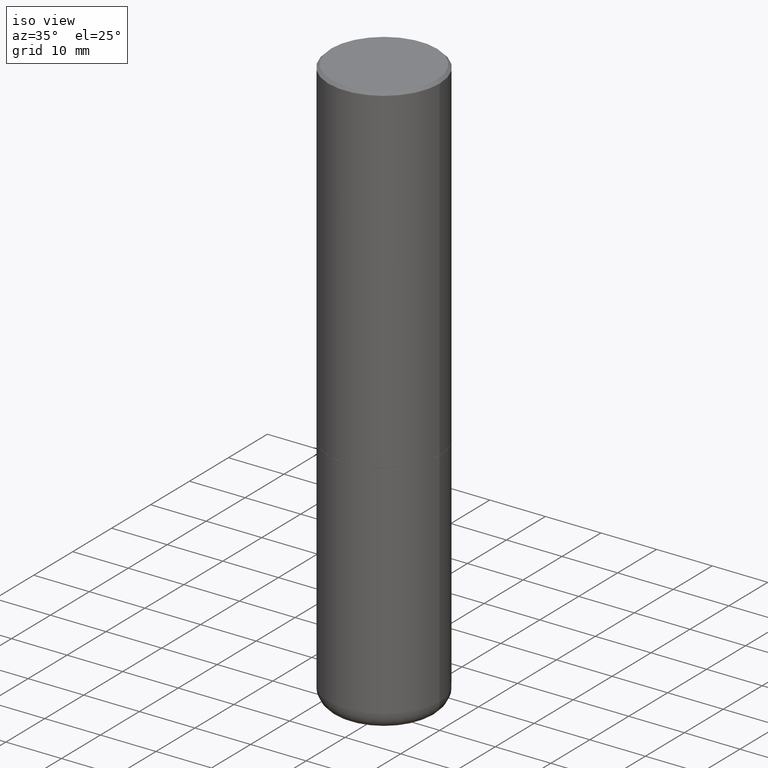
[diagram: clean part render]
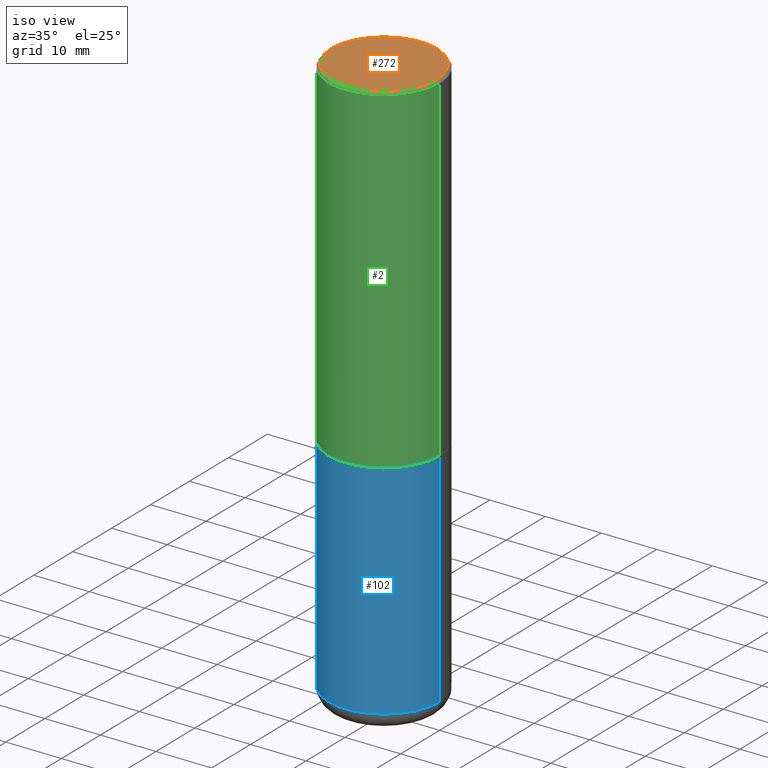
[diagram: same view with three faces highlighted in distinct colors, each labeled with its STEP entity id]
A machine part, iso view with three faces highlighted in distinct colors.
Their STEP definitions:

[orange] entity #272 — the highlighted planar face has unit normal (0, -0, -1).
#17 = PLANE ( 'NONE',  #289 ) ;
#31 = ORIENTED_EDGE ( 'NONE', *, *, #191, .T. ) ;
#43 = CARTESIAN_POINT ( 'NONE',  ( -0.3736999999999997546, 2.644447966039789058E-15, 2.646477743862071275E-16 ) ) ;
#53 = EDGE_LOOP ( 'NONE', ( #31, #218 ) ) ;
#76 = EDGE_CURVE ( 'NONE', #222, #152, #268, .T. ) ;
#95 = AXIS2_PLACEMENT_3D ( 'NONE', #298, #179, #370 ) ;
#99 = DIRECTION ( 'NONE',  ( -2.445468806185136597E-29, 3.491481338843145583E-15, 1.000000000000000000 ) ) ;
#103 = DIRECTION ( 'NONE',  ( 1.000000000000000000, -6.982962677686266711E-15, 4.877734241229879050E-29 ) ) ;
#144 = DIRECTION ( 'NONE',  ( -1.000000000000000000, 6.982962677686265922E-15, -4.876176775795935793E-29 ) ) ;
#148 = CARTESIAN_POINT ( 'NONE',  ( 2.609533152651355831E-15, 0.3736999999999997546, -1.172442689132570013E-15 ) ) ;
#152 = VERTEX_POINT ( 'NONE', #43 ) ;
#170 = AXIS2_PLACEMENT_3D ( 'NONE', #357, #99, #103 ) ;
#179 = DIRECTION ( 'NONE',  ( -2.445468806185136597E-29, 3.491481338843145583E-15, 1.000000000000000000 ) ) ;
#191 = EDGE_CURVE ( 'NONE', #152, #222, #229, .T. ) ;
#215 = CARTESIAN_POINT ( 'NONE',  ( 0.3736999999999997546, -2.667287895133366781E-15, 2.646477743862439574E-16 ) ) ;
#218 = ORIENTED_EDGE ( 'NONE', *, *, #76, .T. ) ;
#222 = VERTEX_POINT ( 'NONE', #215 ) ;
#229 = CIRCLE ( 'NONE', #95, 0.3736999999999997546 ) ;
#268 = CIRCLE ( 'NONE', #170, 0.3736999999999997546 ) ;
#272 = ADVANCED_FACE ( 'NONE', ( #303 ), #17, .F. ) ;
#289 = AXIS2_PLACEMENT_3D ( 'NONE', #148, #338, #144 ) ;
#298 = CARTESIAN_POINT ( 'NONE',  ( -6.471878768878362764E-45, 9.240127656358773134E-31, 2.646477743862255178E-16 ) ) ;
#303 = FACE_OUTER_BOUND ( 'NONE', #53, .T. ) ;
#338 = DIRECTION ( 'NONE',  ( 2.438088387897960049E-29, -3.491481338843145188E-15, -1.000000000000000000 ) ) ;
#357 = CARTESIAN_POINT ( 'NONE',  ( -6.471878768878362764E-45, 9.240127656358773134E-31, 2.646477743862255178E-16 ) ) ;
#370 = DIRECTION ( 'NONE',  ( 1.000000000000000000, -6.982962677686266711E-15, 4.877734241229879050E-29 ) ) ;

[blue] entity #102 — the highlighted cylindrical surface (partial cylindrical patch) has radius 10 mm, axis along (-0, 0, 1).
#3 = DIRECTION ( 'NONE',  ( 1.000000000000000000, -6.982962677686265922E-15, 4.876176775795935793E-29 ) ) ;
#4 = AXIS2_PLACEMENT_3D ( 'NONE', #300, #49, #373 ) ;
#20 = DIRECTION ( 'NONE',  ( 1.000000000000000000, -6.982962677686267499E-15, 0.000000000000000000 ) ) ;
#25 = AXIS2_PLACEMENT_3D ( 'NONE', #125, #410, #20 ) ;
#29 = ORIENTED_EDGE ( 'NONE', *, *, #131, .F. ) ;
#36 = EDGE_CURVE ( 'NONE', #274, #77, #256, .T. ) ;
#49 = DIRECTION ( 'NONE',  ( -2.445468806185136597E-29, 3.491481338843145583E-15, 1.000000000000000000 ) ) ;
#59 = ORIENTED_EDGE ( 'NONE', *, *, #302, .T. ) ;
#60 = CARTESIAN_POINT ( 'NONE',  ( -0.3937000000000000499, -8.336927238883277526E-15, -2.401600000000000179 ) ) ;
#68 = DIRECTION ( 'NONE',  ( -2.445468806185136877E-29, 3.491481338843145188E-15, 1.000000000000000000 ) ) ;
#70 = CARTESIAN_POINT ( 'NONE',  ( 0.3937000000000000499, -1.113433398957078206E-14, -2.401600000000000179 ) ) ;
#77 = VERTEX_POINT ( 'NONE', #60 ) ;
#97 = EDGE_CURVE ( 'NONE', #315, #127, #386, .T. ) ;
#102 = ADVANCED_FACE ( 'NONE', ( #205 ), #174, .T. ) ;
#125 = CARTESIAN_POINT ( 'NONE',  ( 9.724162160914577144E-29, -1.388352639577588421E-14, -3.976400000000000379 ) ) ;
#126 = CIRCLE ( 'NONE', #4, 0.3937000000000000499 ) ;
#127 = VERTEX_POINT ( 'NONE', #70 ) ;
#131 = EDGE_CURVE ( 'NONE', #77, #127, #126, .T. ) ;
#147 = CIRCLE ( 'NONE', #25, 0.3937000000000000499 ) ;
#165 = DIRECTION ( 'NONE',  ( -2.445468806185136877E-29, 3.491481338843145188E-15, 1.000000000000000000 ) ) ;
#168 = CARTESIAN_POINT ( 'NONE',  ( -0.3937000000000000499, 2.797406750687514786E-15, -1.936584745033356735E-29 ) ) ;
#174 = CYLINDRICAL_SURFACE ( 'NONE', #197, 0.3937000000000000499 ) ;
#197 = AXIS2_PLACEMENT_3D ( 'NONE', #363, #233, #3 ) ;
#205 = FACE_OUTER_BOUND ( 'NONE', #279, .T. ) ;
#233 = DIRECTION ( 'NONE',  ( -2.445468806185136597E-29, 3.491481338843145583E-15, 1.000000000000000000 ) ) ;
#256 = LINE ( 'NONE', #168, #382 ) ;
#274 = VERTEX_POINT ( 'NONE', #401 ) ;
#279 = EDGE_LOOP ( 'NONE', ( #355, #59, #319, #29 ) ) ;
#300 = CARTESIAN_POINT ( 'NONE',  ( 5.873037884934224349E-29, -8.385141583365698841E-15, -2.401600000000000179 ) ) ;
#302 = EDGE_CURVE ( 'NONE', #274, #315, #147, .T. ) ;
#315 = VERTEX_POINT ( 'NONE', #346 ) ;
#319 = ORIENTED_EDGE ( 'NONE', *, *, #97, .T. ) ;
#346 = CARTESIAN_POINT ( 'NONE',  ( 0.3936999999999998834, -1.663271880198096585E-14, -3.976400000000000379 ) ) ;
#355 = ORIENTED_EDGE ( 'NONE', *, *, #36, .F. ) ;
#363 = CARTESIAN_POINT ( 'NONE',  ( 0.000000000000000000, 0.000000000000000000, 0.000000000000000000 ) ) ;
#373 = DIRECTION ( 'NONE',  ( 1.000000000000000000, -6.982962677686265133E-15, 0.000000000000000000 ) ) ;
#382 = VECTOR ( 'NONE', #165, 39.37007874015748143 ) ;
#386 = LINE ( 'NONE', #392, #389 ) ;
#389 = VECTOR ( 'NONE', #68, 39.37007874015748143 ) ;
#392 = CARTESIAN_POINT ( 'NONE',  ( 0.3937000000000000499, -2.749192406205083217E-15, 1.919750796630860172E-29 ) ) ;
#401 = CARTESIAN_POINT ( 'NONE',  ( -0.3936999999999998834, -1.108611964508837021E-14, -3.976400000000000379 ) ) ;
#410 = DIRECTION ( 'NONE',  ( -2.445468806185136597E-29, 3.491481338843145583E-15, 1.000000000000000000 ) ) ;

[green] entity #2 — the highlighted cylindrical surface (partial cylindrical patch) has radius 10 mm, axis along (-0, 0, 1).
#2 = ADVANCED_FACE ( 'NONE', ( #343 ), #416, .T. ) ;
#6 = VECTOR ( 'NONE', #406, 39.37007874015748143 ) ;
#34 = DIRECTION ( 'NONE',  ( 1.000000000000000000, -6.982962677686266711E-15, 4.876176775795935793E-29 ) ) ;
#38 = DIRECTION ( 'NONE',  ( -2.445468806185136597E-29, 3.491481338843145583E-15, 1.000000000000000000 ) ) ;
#41 = AXIS2_PLACEMENT_3D ( 'NONE', #356, #261, #34 ) ;
#50 = AXIS2_PLACEMENT_3D ( 'NONE', #388, #38, #297 ) ;
#52 = CARTESIAN_POINT ( 'NONE',  ( -0.3937000000000000499, 2.679362779428219918E-15, -0.02000000000000008715 ) ) ;
#86 = EDGE_LOOP ( 'NONE', ( #282, #317, #116, #255 ) ) ;
#105 = CARTESIAN_POINT ( 'NONE',  ( 5.870592416128038746E-29, -8.381650102026855834E-15, -2.400600000000000289 ) ) ;
#108 = EDGE_CURVE ( 'NONE', #415, #384, #236, .T. ) ;
#114 = CARTESIAN_POINT ( 'NONE',  ( -0.3937000000000003830, -1.428333113714341032E-15, -2.400600000000000289 ) ) ;
#116 = ORIENTED_EDGE ( 'NONE', *, *, #335, .T. ) ;
#153 = CARTESIAN_POINT ( 'NONE',  ( -0.3937000000000001609, 2.797406750687515575E-15, -1.936584745033357296E-29 ) ) ;
#192 = VERTEX_POINT ( 'NONE', #368 ) ;
#195 = LINE ( 'NONE', #153, #6 ) ;
#236 = CIRCLE ( 'NONE', #50, 0.3937000000000000499 ) ;
#251 = EDGE_CURVE ( 'NONE', #380, #192, #260, .T. ) ;
#254 = VECTOR ( 'NONE', #276, 39.37007874015748143 ) ;
#255 = ORIENTED_EDGE ( 'NONE', *, *, #108, .F. ) ;
#260 = CIRCLE ( 'NONE', #397, 0.3937000000000002720 ) ;
#261 = DIRECTION ( 'NONE',  ( -2.445468806185136597E-29, 3.491481338843145583E-15, 1.000000000000000000 ) ) ;
#271 = DIRECTION ( 'NONE',  ( -2.445468806185136597E-29, 3.491481338843145583E-15, 1.000000000000000000 ) ) ;
#276 = DIRECTION ( 'NONE',  ( -2.445468806185136877E-29, 3.491481338843145188E-15, 1.000000000000000000 ) ) ;
#282 = ORIENTED_EDGE ( 'NONE', *, *, #399, .F. ) ;
#283 = CARTESIAN_POINT ( 'NONE',  ( 0.3937000000000000499, -2.770807688499515734E-15, -0.02000000000000008715 ) ) ;
#297 = DIRECTION ( 'NONE',  ( 1.000000000000000000, -6.982962677686265922E-15, 0.000000000000000000 ) ) ;
#317 = ORIENTED_EDGE ( 'NONE', *, *, #251, .T. ) ;
#335 = EDGE_CURVE ( 'NONE', #192, #384, #377, .T. ) ;
#340 = DIRECTION ( 'NONE',  ( 1.000000000000000000, -6.982962677686265922E-15, 0.000000000000000000 ) ) ;
#343 = FACE_OUTER_BOUND ( 'NONE', #86, .T. ) ;
#356 = CARTESIAN_POINT ( 'NONE',  ( 0.000000000000000000, 0.000000000000000000, 0.000000000000000000 ) ) ;
#368 = CARTESIAN_POINT ( 'NONE',  ( 0.3937000000000002720, -1.113084250823194063E-14, -2.400600000000000289 ) ) ;
#377 = LINE ( 'NONE', #405, #254 ) ;
#380 = VERTEX_POINT ( 'NONE', #114 ) ;
#384 = VERTEX_POINT ( 'NONE', #283 ) ;
#388 = CARTESIAN_POINT ( 'NONE',  ( 4.890937612370294178E-31, -6.982962677686321191E-17, -0.02000000000000008715 ) ) ;
#397 = AXIS2_PLACEMENT_3D ( 'NONE', #105, #271, #340 ) ;
#399 = EDGE_CURVE ( 'NONE', #380, #415, #195, .T. ) ;
#405 = CARTESIAN_POINT ( 'NONE',  ( 0.3937000000000001609, -2.749192406205084400E-15, 1.919750796630860732E-29 ) ) ;
#406 = DIRECTION ( 'NONE',  ( -2.445468806185136877E-29, 3.491481338843145188E-15, 1.000000000000000000 ) ) ;
#415 = VERTEX_POINT ( 'NONE', #52 ) ;
#416 = CYLINDRICAL_SURFACE ( 'NONE', #41, 0.3937000000000001609 ) ;